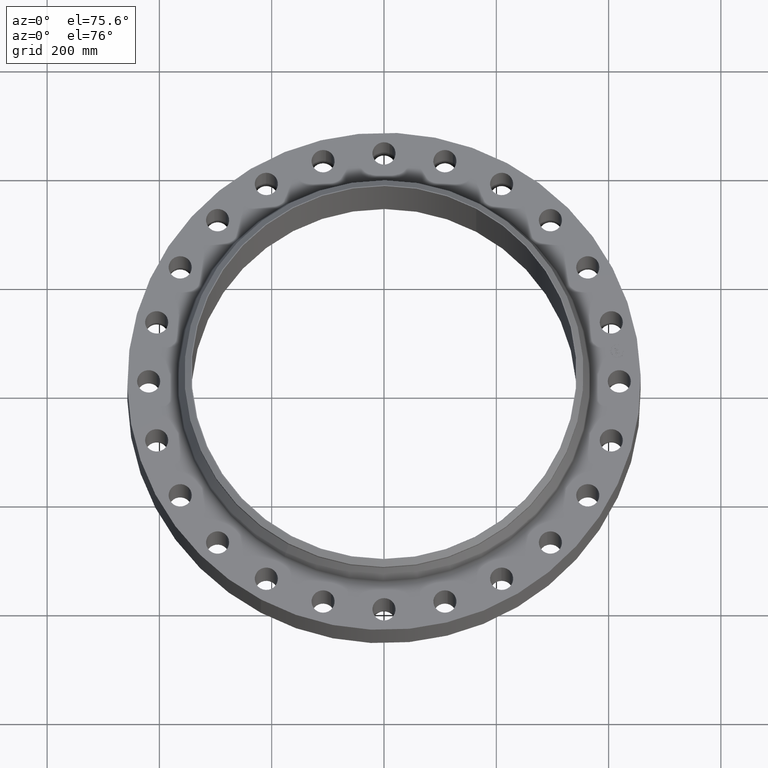
[diagram: clean part render]
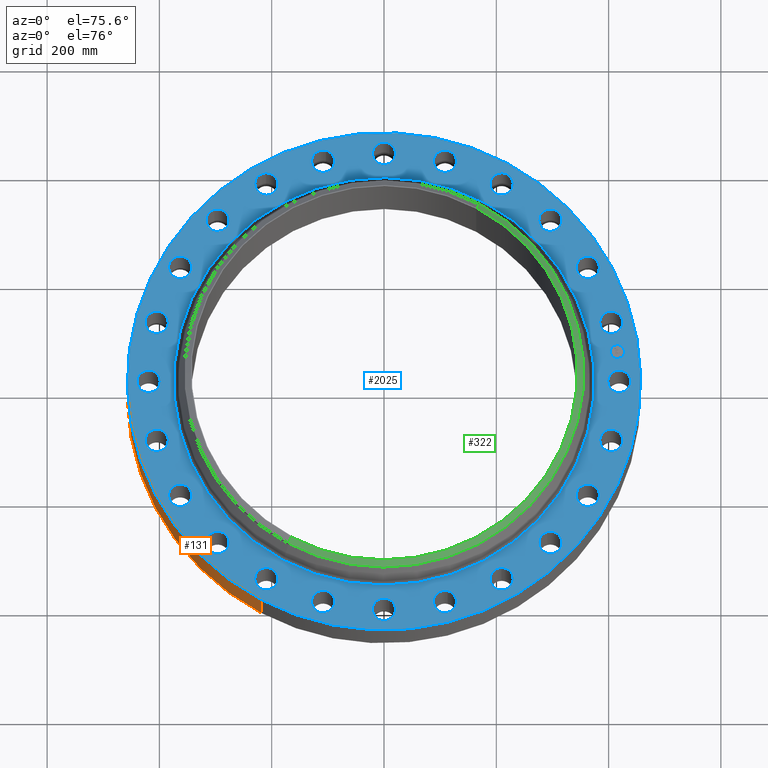
[diagram: same view with three faces highlighted in distinct colors, each labeled with its STEP entity id]
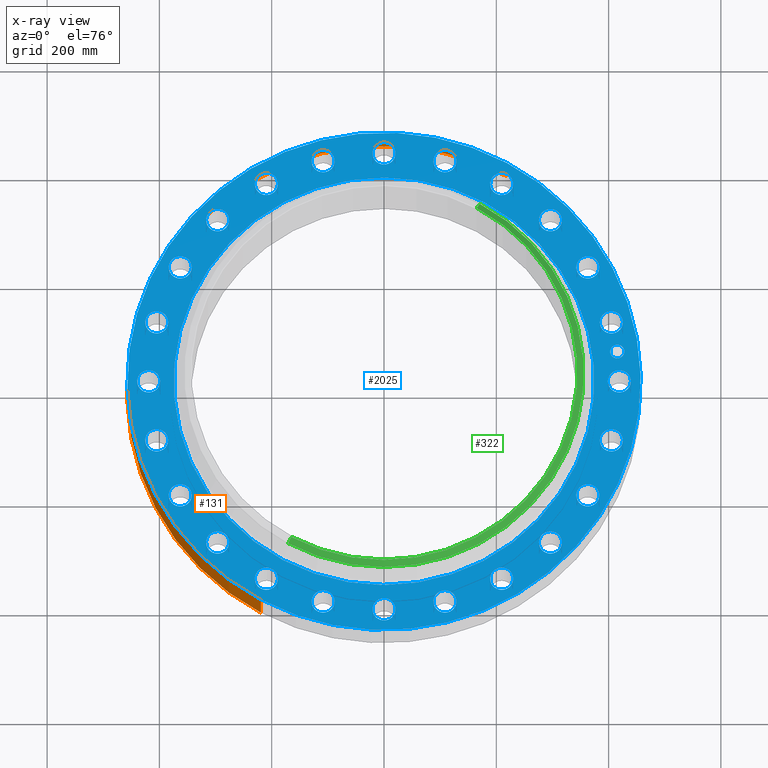
[diagram: x-ray of the same camera — body ghosted, the three highlighted faces saturated]
A machine part, auxiliary view with three faces highlighted in distinct colors.
The next image is the same camera in x-ray (body ghosted, the three faces saturated) — at least one of them is partly hidden behind the body in this view.
Their STEP definitions:

[orange] entity #131 — the highlighted cylindrical surface (partial cylindrical patch) has radius 457.2 mm, axis along (0, 0, -1).
#95=AXIS2_PLACEMENT_3D('Cylinder Axis2P3D',#92,#93,#94) ;
#99=AXIS2_PLACEMENT_3D('Circle Axis2P3D',#97,#98,$) ;
#115=AXIS2_PLACEMENT_3D('Circle Axis2P3D',#113,#114,$) ;
#92=CARTESIAN_POINT('Axis2P3D Location',(0.,0.,3.05000000001)) ;
#97=CARTESIAN_POINT('Axis2P3D Location',(0.,0.,2.23792987641E-015)) ;
#101=CARTESIAN_POINT('Vertex',(-8.62965969491,-15.7964861141,2.23792987641E-015)) ;
#103=CARTESIAN_POINT('Vertex',(8.62965969491,15.7964861141,2.23792987641E-015)) ;
#106=CARTESIAN_POINT('Line Origine',(-8.62965969491,-15.7964861141,1.87500000001)) ;
#110=CARTESIAN_POINT('Vertex',(-8.62965969491,-15.7964861141,3.75000000002)) ;
#113=CARTESIAN_POINT('Axis2P3D Location',(0.,0.,3.75000000002)) ;
#117=CARTESIAN_POINT('Vertex',(8.62965969491,15.7964861141,3.75000000002)) ;
#120=CARTESIAN_POINT('Line Origine',(8.62965969491,15.7964861141,1.87500000001)) ;
#93=DIRECTION('Axis2P3D Direction',(0.,0.,-0.0393700787402)) ;
#94=DIRECTION('Axis2P3D XDirection',(0.0188750212049,0.0345504945626,0.)) ;
#98=DIRECTION('Axis2P3D Direction',(0.,0.,-0.0393700787402)) ;
#107=DIRECTION('Vector Direction',(0.,0.,-0.0393700787402)) ;
#114=DIRECTION('Axis2P3D Direction',(0.,0.,-0.0393700787402)) ;
#121=DIRECTION('Vector Direction',(0.,0.,-0.0393700787402)) ;
#108=VECTOR('Line Direction',#107,0.0393700787402) ;
#122=VECTOR('Line Direction',#121,0.0393700787402) ;
#126=ORIENTED_EDGE('',*,*,#105,.F.) ;
#127=ORIENTED_EDGE('',*,*,#112,.T.) ;
#128=ORIENTED_EDGE('',*,*,#119,.T.) ;
#129=ORIENTED_EDGE('',*,*,#124,.F.) ;
#131=ADVANCED_FACE('PartBody',(#130),#96,.T.) ;
#100=CIRCLE('generated circle',#99,18.0000000001) ;
#116=CIRCLE('generated circle',#115,18.0000000001) ;
#96=CYLINDRICAL_SURFACE('generated cylinder',#95,18.0000000001) ;
#105=EDGE_CURVE('',#102,#104,#100,.T.) ;
#112=EDGE_CURVE('',#102,#111,#109,.F.) ;
#119=EDGE_CURVE('',#111,#118,#116,.T.) ;
#124=EDGE_CURVE('',#104,#118,#123,.F.) ;
#125=EDGE_LOOP('',(#126,#127,#128,#129)) ;
#130=FACE_OUTER_BOUND('',#125,.T.) ;
#109=LINE('Line',#106,#108) ;
#123=LINE('Line',#120,#122) ;
#102=VERTEX_POINT('',#101) ;
#104=VERTEX_POINT('',#103) ;
#111=VERTEX_POINT('',#110) ;
#118=VERTEX_POINT('',#117) ;

[blue] entity #2025 — the highlighted planar face has unit normal (0, 0, -1).
#65=AXIS2_PLACEMENT_3D('Circle Axis2P3D',#63,#64,$) ;
#82=AXIS2_PLACEMENT_3D('Circle Axis2P3D',#80,#81,$) ;
#115=AXIS2_PLACEMENT_3D('Circle Axis2P3D',#113,#114,$) ;
#139=AXIS2_PLACEMENT_3D('Circle Axis2P3D',#137,#138,$) ;
#156=AXIS2_PLACEMENT_3D('Circle Axis2P3D',#154,#155,$) ;
#191=AXIS2_PLACEMENT_3D('Circle Axis2P3D',#189,#190,$) ;
#930=AXIS2_PLACEMENT_3D('Circle Axis2P3D',#928,#929,$) ;
#942=AXIS2_PLACEMENT_3D('Circle Axis2P3D',#940,#941,$) ;
#973=AXIS2_PLACEMENT_3D('Circle Axis2P3D',#971,#972,$) ;
#985=AXIS2_PLACEMENT_3D('Circle Axis2P3D',#983,#984,$) ;
#1016=AXIS2_PLACEMENT_3D('Circle Axis2P3D',#1014,#1015,$) ;
#1028=AXIS2_PLACEMENT_3D('Circle Axis2P3D',#1026,#1027,$) ;
#1059=AXIS2_PLACEMENT_3D('Circle Axis2P3D',#1057,#1058,$) ;
#1071=AXIS2_PLACEMENT_3D('Circle Axis2P3D',#1069,#1070,$) ;
#1102=AXIS2_PLACEMENT_3D('Circle Axis2P3D',#1100,#1101,$) ;
#1114=AXIS2_PLACEMENT_3D('Circle Axis2P3D',#1112,#1113,$) ;
#1145=AXIS2_PLACEMENT_3D('Circle Axis2P3D',#1143,#1144,$) ;
#1157=AXIS2_PLACEMENT_3D('Circle Axis2P3D',#1155,#1156,$) ;
#1188=AXIS2_PLACEMENT_3D('Circle Axis2P3D',#1186,#1187,$) ;
#1200=AXIS2_PLACEMENT_3D('Circle Axis2P3D',#1198,#1199,$) ;
#1231=AXIS2_PLACEMENT_3D('Circle Axis2P3D',#1229,#1230,$) ;
#1243=AXIS2_PLACEMENT_3D('Circle Axis2P3D',#1241,#1242,$) ;
#1274=AXIS2_PLACEMENT_3D('Circle Axis2P3D',#1272,#1273,$) ;
#1286=AXIS2_PLACEMENT_3D('Circle Axis2P3D',#1284,#1285,$) ;
#1317=AXIS2_PLACEMENT_3D('Circle Axis2P3D',#1315,#1316,$) ;
#1329=AXIS2_PLACEMENT_3D('Circle Axis2P3D',#1327,#1328,$) ;
#1360=AXIS2_PLACEMENT_3D('Circle Axis2P3D',#1358,#1359,$) ;
#1372=AXIS2_PLACEMENT_3D('Circle Axis2P3D',#1370,#1371,$) ;
#1403=AXIS2_PLACEMENT_3D('Circle Axis2P3D',#1401,#1402,$) ;
#1415=AXIS2_PLACEMENT_3D('Circle Axis2P3D',#1413,#1414,$) ;
#1446=AXIS2_PLACEMENT_3D('Circle Axis2P3D',#1444,#1445,$) ;
#1458=AXIS2_PLACEMENT_3D('Circle Axis2P3D',#1456,#1457,$) ;
#1489=AXIS2_PLACEMENT_3D('Circle Axis2P3D',#1487,#1488,$) ;
#1501=AXIS2_PLACEMENT_3D('Circle Axis2P3D',#1499,#1500,$) ;
#1532=AXIS2_PLACEMENT_3D('Circle Axis2P3D',#1530,#1531,$) ;
#1544=AXIS2_PLACEMENT_3D('Circle Axis2P3D',#1542,#1543,$) ;
#1575=AXIS2_PLACEMENT_3D('Circle Axis2P3D',#1573,#1574,$) ;
#1587=AXIS2_PLACEMENT_3D('Circle Axis2P3D',#1585,#1586,$) ;
#1618=AXIS2_PLACEMENT_3D('Circle Axis2P3D',#1616,#1617,$) ;
#1630=AXIS2_PLACEMENT_3D('Circle Axis2P3D',#1628,#1629,$) ;
#1661=AXIS2_PLACEMENT_3D('Circle Axis2P3D',#1659,#1660,$) ;
#1673=AXIS2_PLACEMENT_3D('Circle Axis2P3D',#1671,#1672,$) ;
#1704=AXIS2_PLACEMENT_3D('Circle Axis2P3D',#1702,#1703,$) ;
#1716=AXIS2_PLACEMENT_3D('Circle Axis2P3D',#1714,#1715,$) ;
#1747=AXIS2_PLACEMENT_3D('Circle Axis2P3D',#1745,#1746,$) ;
#1759=AXIS2_PLACEMENT_3D('Circle Axis2P3D',#1757,#1758,$) ;
#1790=AXIS2_PLACEMENT_3D('Circle Axis2P3D',#1788,#1789,$) ;
#1802=AXIS2_PLACEMENT_3D('Circle Axis2P3D',#1800,#1801,$) ;
#1833=AXIS2_PLACEMENT_3D('Circle Axis2P3D',#1831,#1832,$) ;
#1845=AXIS2_PLACEMENT_3D('Circle Axis2P3D',#1843,#1844,$) ;
#1876=AXIS2_PLACEMENT_3D('Circle Axis2P3D',#1874,#1875,$) ;
#1888=AXIS2_PLACEMENT_3D('Circle Axis2P3D',#1886,#1887,$) ;
#1901=AXIS2_PLACEMENT_3D('Plane Axis2P3D',#1898,#1899,#1900) ;
#2009=AXIS2_PLACEMENT_3D('Circle Axis2P3D',#2007,#2008,$) ;
#2018=AXIS2_PLACEMENT_3D('Circle Axis2P3D',#2016,#2017,$) ;
#46=CARTESIAN_POINT('Vertex',(15.7891581249,0.388334686271,3.75000000002)) ;
#60=CARTESIAN_POINT('Vertex',(17.2108418752,-0.388334686271,3.75000000002)) ;
#63=CARTESIAN_POINT('Axis2P3D Location',(16.5000000001,0.,3.75000000002)) ;
#80=CARTESIAN_POINT('Axis2P3D Location',(16.5000000001,0.,3.75000000002)) ;
#110=CARTESIAN_POINT('Vertex',(-8.62965969491,-15.7964861141,3.75000000002)) ;
#113=CARTESIAN_POINT('Axis2P3D Location',(0.,0.,3.75000000002)) ;
#117=CARTESIAN_POINT('Vertex',(8.62965969491,15.7964861141,3.75000000002)) ;
#137=CARTESIAN_POINT('Axis2P3D Location',(0.,0.,3.75000000002)) ;
#154=CARTESIAN_POINT('Axis2P3D Location',(0.,0.,3.75000000002)) ;
#158=CARTESIAN_POINT('Vertex',(7.07043361052,12.9423419112,3.75000000002)) ;
#160=CARTESIAN_POINT('Vertex',(-7.07043361052,-12.9423419112,3.75000000002)) ;
#189=CARTESIAN_POINT('Axis2P3D Location',(0.,0.,3.75000000002)) ;
#918=CARTESIAN_POINT('Vertex',(-15.3516640209,3.71143232615,3.75000000002)) ;
#925=CARTESIAN_POINT('Vertex',(-16.5238882468,4.82959616226,3.75000000002)) ;
#928=CARTESIAN_POINT('Axis2P3D Location',(-15.9377761338,4.27051424421,3.75000000002)) ;
#940=CARTESIAN_POINT('Axis2P3D Location',(-15.9377761338,4.27051424421,3.75000000002)) ;
#961=CARTESIAN_POINT('Vertex',(13.8679793837,-7.55827135898,3.75000000002)) ;
#968=CARTESIAN_POINT('Vertex',(14.7108589413,-8.94172864108,3.75000000002)) ;
#971=CARTESIAN_POINT('Axis2P3D Location',(14.2894191625,-8.25000000003,3.75000000002)) ;
#983=CARTESIAN_POINT('Axis2P3D Location',(14.2894191625,-8.25000000003,3.75000000002)) ;
#1004=CARTESIAN_POINT('Vertex',(-13.8679793837,7.55827135898,3.75000000002)) ;
#1011=CARTESIAN_POINT('Vertex',(-14.7108589413,8.94172864108,3.75000000002)) ;
#1014=CARTESIAN_POINT('Axis2P3D Location',(-14.2894191625,8.25000000003,3.75000000002)) ;
#1026=CARTESIAN_POINT('Axis2P3D Location',(-14.2894191625,8.25000000003,3.75000000002)) ;
#1047=CARTESIAN_POINT('Vertex',(11.4392148694,-10.8900266893,3.75000000002)) ;
#1054=CARTESIAN_POINT('Vertex',(11.8953089099,-12.4444970899,3.75000000002)) ;
#1057=CARTESIAN_POINT('Axis2P3D Location',(11.6672618896,-11.6672618896,3.75000000002)) ;
#1069=CARTESIAN_POINT('Axis2P3D Location',(11.6672618896,-11.6672618896,3.75000000002)) ;
#1090=CARTESIAN_POINT('Vertex',(-11.4392148694,10.8900266893,3.75000000002)) ;
#1097=CARTESIAN_POINT('Vertex',(-11.8953089099,12.4444970899,3.75000000002)) ;
#1100=CARTESIAN_POINT('Axis2P3D Location',(-11.6672618896,11.6672618896,3.75000000002)) ;
#1112=CARTESIAN_POINT('Axis2P3D Location',(-11.6672618896,11.6672618896,3.75000000002)) ;
#1133=CARTESIAN_POINT('Vertex',(8.23088676595,-13.4796446974,3.75000000002)) ;
#1140=CARTESIAN_POINT('Vertex',(8.26911323412,-15.0991936276,3.75000000002)) ;
#1143=CARTESIAN_POINT('Axis2P3D Location',(8.25000000003,-14.2894191625,3.75000000002)) ;
#1155=CARTESIAN_POINT('Axis2P3D Location',(8.25000000003,-14.2894191625,3.75000000002)) ;
#1176=CARTESIAN_POINT('Vertex',(-8.23088676595,13.4796446974,3.75000000002)) ;
#1183=CARTESIAN_POINT('Vertex',(-8.26911323412,15.0991936276,3.75000000002)) ;
#1186=CARTESIAN_POINT('Axis2P3D Location',(-8.25000000003,14.2894191625,3.75000000002)) ;
#1198=CARTESIAN_POINT('Axis2P3D Location',(-8.25000000003,14.2894191625,3.75000000002)) ;
#1219=CARTESIAN_POINT('Vertex',(4.46163733158,-15.1506471956,3.75000000002)) ;
#1226=CARTESIAN_POINT('Vertex',(4.07939115684,-16.7249050721,3.75000000002)) ;
#1229=CARTESIAN_POINT('Axis2P3D Location',(4.27051424421,-15.9377761338,3.75000000002)) ;
#1241=CARTESIAN_POINT('Axis2P3D Location',(4.27051424421,-15.9377761338,3.75000000002)) ;
#1262=CARTESIAN_POINT('Vertex',(-4.46163733158,15.1506471956,3.75000000002)) ;
#1269=CARTESIAN_POINT('Vertex',(-4.07939115684,16.7249050721,3.75000000002)) ;
#1272=CARTESIAN_POINT('Axis2P3D Location',(-4.27051424421,15.9377761338,3.75000000002)) ;
#1284=CARTESIAN_POINT('Axis2P3D Location',(-4.27051424421,15.9377761338,3.75000000002)) ;
#1305=CARTESIAN_POINT('Vertex',(0.388334686271,-15.7891581249,3.75000000002)) ;
#1312=CARTESIAN_POINT('Vertex',(-0.388334686271,-17.2108418752,3.75000000002)) ;
#1315=CARTESIAN_POINT('Axis2P3D Location',(-1.22759626711E-015,-16.5000000001,3.75000000002)) ;
#1327=CARTESIAN_POINT('Axis2P3D Location',(-1.22759626711E-015,-16.5000000001,3.75000000002)) ;
#1348=CARTESIAN_POINT('Vertex',(-0.388334686271,15.7891581249,3.75000000002)) ;
#1355=CARTESIAN_POINT('Vertex',(0.388334686271,17.2108418752,3.75000000002)) ;
#1358=CARTESIAN_POINT('Axis2P3D Location',(-7.93070951492E-016,16.5000000001,3.75000000002)) ;
#1370=CARTESIAN_POINT('Axis2P3D Location',(-7.93070951492E-016,16.5000000001,3.75000000002)) ;
#1391=CARTESIAN_POINT('Vertex',(-3.71143232615,-15.3516640209,3.75000000002)) ;
#1398=CARTESIAN_POINT('Vertex',(-4.82959616226,-16.5238882468,3.75000000002)) ;
#1401=CARTESIAN_POINT('Axis2P3D Location',(-4.27051424421,-15.9377761338,3.75000000002)) ;
#1413=CARTESIAN_POINT('Axis2P3D Location',(-4.27051424421,-15.9377761338,3.75000000002)) ;
#1434=CARTESIAN_POINT('Vertex',(3.71143232615,15.3516640209,3.75000000002)) ;
#1441=CARTESIAN_POINT('Vertex',(4.82959616226,16.5238882468,3.75000000002)) ;
#1444=CARTESIAN_POINT('Axis2P3D Location',(4.27051424421,15.9377761338,3.75000000002)) ;
#1456=CARTESIAN_POINT('Axis2P3D Location',(4.27051424421,15.9377761338,3.75000000002)) ;
#1477=CARTESIAN_POINT('Vertex',(-7.55827135898,-13.8679793837,3.75000000002)) ;
#1484=CARTESIAN_POINT('Vertex',(-8.94172864108,-14.7108589413,3.75000000002)) ;
#1487=CARTESIAN_POINT('Axis2P3D Location',(-8.25000000003,-14.2894191625,3.75000000002)) ;
#1499=CARTESIAN_POINT('Axis2P3D Location',(-8.25000000003,-14.2894191625,3.75000000002)) ;
#1520=CARTESIAN_POINT('Vertex',(7.55827135898,13.8679793837,3.75000000002)) ;
#1527=CARTESIAN_POINT('Vertex',(8.94172864108,14.7108589413,3.75000000002)) ;
#1530=CARTESIAN_POINT('Axis2P3D Location',(8.25000000003,14.2894191625,3.75000000002)) ;
#1542=CARTESIAN_POINT('Axis2P3D Location',(8.25000000003,14.2894191625,3.75000000002)) ;
#1563=CARTESIAN_POINT('Vertex',(-10.8900266893,-11.4392148694,3.75000000002)) ;
#1570=CARTESIAN_POINT('Vertex',(-12.4444970899,-11.8953089099,3.75000000002)) ;
#1573=CARTESIAN_POINT('Axis2P3D Location',(-11.6672618896,-11.6672618896,3.75000000002)) ;
#1585=CARTESIAN_POINT('Axis2P3D Location',(-11.6672618896,-11.6672618896,3.75000000002)) ;
#1606=CARTESIAN_POINT('Vertex',(10.8900266893,11.4392148694,3.75000000002)) ;
#1613=CARTESIAN_POINT('Vertex',(12.4444970899,11.8953089099,3.75000000002)) ;
#1616=CARTESIAN_POINT('Axis2P3D Location',(11.6672618896,11.6672618896,3.75000000002)) ;
#1628=CARTESIAN_POINT('Axis2P3D Location',(11.6672618896,11.6672618896,3.75000000002)) ;
#1649=CARTESIAN_POINT('Vertex',(-13.4796446974,-8.23088676595,3.75000000002)) ;
#1656=CARTESIAN_POINT('Vertex',(-15.0991936276,-8.26911323412,3.75000000002)) ;
#1659=CARTESIAN_POINT('Axis2P3D Location',(-14.2894191625,-8.25000000003,3.75000000002)) ;
#1671=CARTESIAN_POINT('Axis2P3D Location',(-14.2894191625,-8.25000000003,3.75000000002)) ;
#1692=CARTESIAN_POINT('Vertex',(13.4796446974,8.23088676595,3.75000000002)) ;
#1699=CARTESIAN_POINT('Vertex',(15.0991936276,8.26911323412,3.75000000002)) ;
#1702=CARTESIAN_POINT('Axis2P3D Location',(14.2894191625,8.25000000003,3.75000000002)) ;
#1714=CARTESIAN_POINT('Axis2P3D Location',(14.2894191625,8.25000000003,3.75000000002)) ;
#1735=CARTESIAN_POINT('Vertex',(-15.1506471956,-4.46163733158,3.75000000002)) ;
#1742=CARTESIAN_POINT('Vertex',(-16.7249050721,-4.07939115684,3.75000000002)) ;
#1745=CARTESIAN_POINT('Axis2P3D Location',(-15.9377761338,-4.27051424421,3.75000000002)) ;
#1757=CARTESIAN_POINT('Axis2P3D Location',(-15.9377761338,-4.27051424421,3.75000000002)) ;
#1778=CARTESIAN_POINT('Vertex',(15.1506471956,4.46163733158,3.75000000002)) ;
#1785=CARTESIAN_POINT('Vertex',(16.7249050721,4.07939115684,3.75000000002)) ;
#1788=CARTESIAN_POINT('Axis2P3D Location',(15.9377761338,4.27051424421,3.75000000002)) ;
#1800=CARTESIAN_POINT('Axis2P3D Location',(15.9377761338,4.27051424421,3.75000000002)) ;
#1821=CARTESIAN_POINT('Vertex',(-15.7891581249,-0.388334686271,3.75000000002)) ;
#1828=CARTESIAN_POINT('Vertex',(-17.2108418752,0.388334686271,3.75000000002)) ;
#1831=CARTESIAN_POINT('Axis2P3D Location',(-16.5000000001,-2.0206672186E-015,3.75000000002)) ;
#1843=CARTESIAN_POINT('Axis2P3D Location',(-16.5000000001,-2.0206672186E-015,3.75000000002)) ;
#1864=CARTESIAN_POINT('Vertex',(15.3516640209,-3.71143232615,3.75000000002)) ;
#1871=CARTESIAN_POINT('Vertex',(16.5238882468,-4.82959616226,3.75000000002)) ;
#1874=CARTESIAN_POINT('Axis2P3D Location',(15.9377761338,-4.27051424421,3.75000000002)) ;
#1886=CARTESIAN_POINT('Axis2P3D Location',(15.9377761338,-4.27051424421,3.75000000002)) ;
#1898=CARTESIAN_POINT('Axis2P3D Location',(0.,18.0000000001,3.75000000002)) ;
#2007=CARTESIAN_POINT('Axis2P3D Location',(16.3588402127,2.15368217164,3.75000000002)) ;
#2011=CARTESIAN_POINT('Vertex',(16.2935772662,2.64940346613,3.75000000002)) ;
#2013=CARTESIAN_POINT('Vertex',(16.4241031593,1.65796087715,3.75000000002)) ;
#2016=CARTESIAN_POINT('Axis2P3D Location',(16.3588402127,2.15368217164,3.75000000002)) ;
#64=DIRECTION('Axis2P3D Direction',(0.,-0.,-0.0393700787402)) ;
#81=DIRECTION('Axis2P3D Direction',(0.,-0.,-0.0393700787402)) ;
#114=DIRECTION('Axis2P3D Direction',(0.,0.,-0.0393700787402)) ;
#138=DIRECTION('Axis2P3D Direction',(0.,0.,-0.0393700787402)) ;
#155=DIRECTION('Axis2P3D Direction',(0.,0.,-0.0393700787402)) ;
#190=DIRECTION('Axis2P3D Direction',(0.,0.,-0.0393700787402)) ;
#929=DIRECTION('Axis2P3D Direction',(0.,0.,-0.0393700787402)) ;
#941=DIRECTION('Axis2P3D Direction',(0.,0.,-0.0393700787402)) ;
#972=DIRECTION('Axis2P3D Direction',(0.,-0.,-0.0393700787402)) ;
#984=DIRECTION('Axis2P3D Direction',(0.,-0.,-0.0393700787402)) ;
#1015=DIRECTION('Axis2P3D Direction',(0.,0.,-0.0393700787402)) ;
#1027=DIRECTION('Axis2P3D Direction',(0.,0.,-0.0393700787402)) ;
#1058=DIRECTION('Axis2P3D Direction',(0.,-0.,-0.0393700787402)) ;
#1070=DIRECTION('Axis2P3D Direction',(0.,-0.,-0.0393700787402)) ;
#1101=DIRECTION('Axis2P3D Direction',(0.,0.,-0.0393700787402)) ;
#1113=DIRECTION('Axis2P3D Direction',(0.,0.,-0.0393700787402)) ;
#1144=DIRECTION('Axis2P3D Direction',(0.,-0.,-0.0393700787402)) ;
#1156=DIRECTION('Axis2P3D Direction',(0.,-0.,-0.0393700787402)) ;
#1187=DIRECTION('Axis2P3D Direction',(0.,0.,-0.0393700787402)) ;
#1199=DIRECTION('Axis2P3D Direction',(0.,0.,-0.0393700787402)) ;
#1230=DIRECTION('Axis2P3D Direction',(0.,-0.,-0.0393700787402)) ;
#1242=DIRECTION('Axis2P3D Direction',(0.,-0.,-0.0393700787402)) ;
#1273=DIRECTION('Axis2P3D Direction',(0.,0.,-0.0393700787402)) ;
#1285=DIRECTION('Axis2P3D Direction',(0.,0.,-0.0393700787402)) ;
#1316=DIRECTION('Axis2P3D Direction',(0.,-0.,-0.0393700787402)) ;
#1328=DIRECTION('Axis2P3D Direction',(0.,-0.,-0.0393700787402)) ;
#1359=DIRECTION('Axis2P3D Direction',(0.,0.,-0.0393700787402)) ;
#1371=DIRECTION('Axis2P3D Direction',(0.,0.,-0.0393700787402)) ;
#1402=DIRECTION('Axis2P3D Direction',(-0.,0.,-0.0393700787402)) ;
#1414=DIRECTION('Axis2P3D Direction',(-0.,0.,-0.0393700787402)) ;
#1445=DIRECTION('Axis2P3D Direction',(0.,0.,-0.0393700787402)) ;
#1457=DIRECTION('Axis2P3D Direction',(0.,0.,-0.0393700787402)) ;
#1488=DIRECTION('Axis2P3D Direction',(-0.,0.,-0.0393700787402)) ;
#1500=DIRECTION('Axis2P3D Direction',(-0.,0.,-0.0393700787402)) ;
#1531=DIRECTION('Axis2P3D Direction',(0.,0.,-0.0393700787402)) ;
#1543=DIRECTION('Axis2P3D Direction',(0.,0.,-0.0393700787402)) ;
#1574=DIRECTION('Axis2P3D Direction',(-0.,0.,-0.0393700787402)) ;
#1586=DIRECTION('Axis2P3D Direction',(-0.,0.,-0.0393700787402)) ;
#1617=DIRECTION('Axis2P3D Direction',(0.,0.,-0.0393700787402)) ;
#1629=DIRECTION('Axis2P3D Direction',(0.,0.,-0.0393700787402)) ;
#1660=DIRECTION('Axis2P3D Direction',(-0.,0.,-0.0393700787402)) ;
#1672=DIRECTION('Axis2P3D Direction',(-0.,0.,-0.0393700787402)) ;
#1703=DIRECTION('Axis2P3D Direction',(0.,0.,-0.0393700787402)) ;
#1715=DIRECTION('Axis2P3D Direction',(0.,0.,-0.0393700787402)) ;
#1746=DIRECTION('Axis2P3D Direction',(-0.,0.,-0.0393700787402)) ;
#1758=DIRECTION('Axis2P3D Direction',(-0.,0.,-0.0393700787402)) ;
#1789=DIRECTION('Axis2P3D Direction',(0.,0.,-0.0393700787402)) ;
#1801=DIRECTION('Axis2P3D Direction',(0.,0.,-0.0393700787402)) ;
#1832=DIRECTION('Axis2P3D Direction',(-0.,0.,-0.0393700787402)) ;
#1844=DIRECTION('Axis2P3D Direction',(-0.,0.,-0.0393700787402)) ;
#1875=DIRECTION('Axis2P3D Direction',(0.,-0.,-0.0393700787402)) ;
#1887=DIRECTION('Axis2P3D Direction',(0.,-0.,-0.0393700787402)) ;
#1899=DIRECTION('Axis2P3D Direction',(0.,0.,-0.0393700787402)) ;
#1900=DIRECTION('Axis2P3D XDirection',(0.0393700787402,0.,0.)) ;
#2008=DIRECTION('Axis2P3D Direction',(0.,0.,-0.0393700787402)) ;
#2017=DIRECTION('Axis2P3D Direction',(0.,0.,-0.0393700787402)) ;
#1904=ORIENTED_EDGE('',*,*,#141,.F.) ;
#1905=ORIENTED_EDGE('',*,*,#119,.F.) ;
#1908=ORIENTED_EDGE('',*,*,#67,.T.) ;
#1909=ORIENTED_EDGE('',*,*,#84,.T.) ;
#1912=ORIENTED_EDGE('',*,*,#193,.T.) ;
#1913=ORIENTED_EDGE('',*,*,#162,.T.) ;
#1916=ORIENTED_EDGE('',*,*,#1890,.T.) ;
#1917=ORIENTED_EDGE('',*,*,#1878,.T.) ;
#1920=ORIENTED_EDGE('',*,*,#987,.T.) ;
#1921=ORIENTED_EDGE('',*,*,#975,.T.) ;
#1924=ORIENTED_EDGE('',*,*,#1073,.T.) ;
#1925=ORIENTED_EDGE('',*,*,#1061,.T.) ;
#1928=ORIENTED_EDGE('',*,*,#1159,.T.) ;
#1929=ORIENTED_EDGE('',*,*,#1147,.T.) ;
#1932=ORIENTED_EDGE('',*,*,#1245,.T.) ;
#1933=ORIENTED_EDGE('',*,*,#1233,.T.) ;
#1936=ORIENTED_EDGE('',*,*,#1331,.T.) ;
#1937=ORIENTED_EDGE('',*,*,#1319,.T.) ;
#1940=ORIENTED_EDGE('',*,*,#1417,.T.) ;
#1941=ORIENTED_EDGE('',*,*,#1405,.T.) ;
#1944=ORIENTED_EDGE('',*,*,#1503,.T.) ;
#1945=ORIENTED_EDGE('',*,*,#1491,.T.) ;
#1948=ORIENTED_EDGE('',*,*,#1589,.T.) ;
#1949=ORIENTED_EDGE('',*,*,#1577,.T.) ;
#1952=ORIENTED_EDGE('',*,*,#1675,.T.) ;
#1953=ORIENTED_EDGE('',*,*,#1663,.T.) ;
#1956=ORIENTED_EDGE('',*,*,#1761,.T.) ;
#1957=ORIENTED_EDGE('',*,*,#1749,.T.) ;
#1960=ORIENTED_EDGE('',*,*,#1847,.T.) ;
#1961=ORIENTED_EDGE('',*,*,#1835,.T.) ;
#1964=ORIENTED_EDGE('',*,*,#944,.T.) ;
#1965=ORIENTED_EDGE('',*,*,#932,.T.) ;
#1968=ORIENTED_EDGE('',*,*,#1030,.T.) ;
#1969=ORIENTED_EDGE('',*,*,#1018,.T.) ;
#1972=ORIENTED_EDGE('',*,*,#1116,.T.) ;
#1973=ORIENTED_EDGE('',*,*,#1104,.T.) ;
#1976=ORIENTED_EDGE('',*,*,#1202,.T.) ;
#1977=ORIENTED_EDGE('',*,*,#1190,.T.) ;
#1980=ORIENTED_EDGE('',*,*,#1288,.T.) ;
#1981=ORIENTED_EDGE('',*,*,#1276,.T.) ;
#1984=ORIENTED_EDGE('',*,*,#1374,.T.) ;
#1985=ORIENTED_EDGE('',*,*,#1362,.T.) ;
#1988=ORIENTED_EDGE('',*,*,#1460,.T.) ;
#1989=ORIENTED_EDGE('',*,*,#1448,.T.) ;
#1992=ORIENTED_EDGE('',*,*,#1546,.T.) ;
#1993=ORIENTED_EDGE('',*,*,#1534,.T.) ;
#1996=ORIENTED_EDGE('',*,*,#1632,.T.) ;
#1997=ORIENTED_EDGE('',*,*,#1620,.T.) ;
#2000=ORIENTED_EDGE('',*,*,#1718,.T.) ;
#2001=ORIENTED_EDGE('',*,*,#1706,.T.) ;
#2004=ORIENTED_EDGE('',*,*,#1804,.T.) ;
#2005=ORIENTED_EDGE('',*,*,#1792,.T.) ;
#2022=ORIENTED_EDGE('',*,*,#2015,.T.) ;
#2023=ORIENTED_EDGE('',*,*,#2020,.T.) ;
#1910=FACE_BOUND('',#1907,.T.) ;
#1914=FACE_BOUND('',#1911,.T.) ;
#1918=FACE_BOUND('',#1915,.T.) ;
#1922=FACE_BOUND('',#1919,.T.) ;
#1926=FACE_BOUND('',#1923,.T.) ;
#1930=FACE_BOUND('',#1927,.T.) ;
#1934=FACE_BOUND('',#1931,.T.) ;
#1938=FACE_BOUND('',#1935,.T.) ;
#1942=FACE_BOUND('',#1939,.T.) ;
#1946=FACE_BOUND('',#1943,.T.) ;
#1950=FACE_BOUND('',#1947,.T.) ;
#1954=FACE_BOUND('',#1951,.T.) ;
#1958=FACE_BOUND('',#1955,.T.) ;
#1962=FACE_BOUND('',#1959,.T.) ;
#1966=FACE_BOUND('',#1963,.T.) ;
#1970=FACE_BOUND('',#1967,.T.) ;
#1974=FACE_BOUND('',#1971,.T.) ;
#1978=FACE_BOUND('',#1975,.T.) ;
#1982=FACE_BOUND('',#1979,.T.) ;
#1986=FACE_BOUND('',#1983,.T.) ;
#1990=FACE_BOUND('',#1987,.T.) ;
#1994=FACE_BOUND('',#1991,.T.) ;
#1998=FACE_BOUND('',#1995,.T.) ;
#2002=FACE_BOUND('',#1999,.T.) ;
#2006=FACE_BOUND('',#2003,.T.) ;
#2024=FACE_BOUND('',#2021,.T.) ;
#2025=ADVANCED_FACE('PartBody',(#1906,#1910,#1914,#1918,#1922,#1926,#1930,#1934,#1938,#1942,#1946,#1950,#1954,#1958,#1962,#1966,#1970,#1974,#1978,#1982,#1986,#1990,#1994,#1998,#2002,#2006,#2024),#1902,.F.) ;
#66=CIRCLE('generated circle',#65,0.810000000003) ;
#83=CIRCLE('generated circle',#82,0.810000000003) ;
#116=CIRCLE('generated circle',#115,18.0000000001) ;
#140=CIRCLE('generated circle',#139,18.0000000001) ;
#157=CIRCLE('generated circle',#156,14.7477200132) ;
#192=CIRCLE('generated circle',#191,14.7477200132) ;
#931=CIRCLE('generated circle',#930,0.810000000003) ;
#943=CIRCLE('generated circle',#942,0.810000000003) ;
#974=CIRCLE('generated circle',#973,0.810000000003) ;
#986=CIRCLE('generated circle',#985,0.810000000003) ;
#1017=CIRCLE('generated circle',#1016,0.810000000003) ;
#1029=CIRCLE('generated circle',#1028,0.810000000003) ;
#1060=CIRCLE('generated circle',#1059,0.810000000003) ;
#1072=CIRCLE('generated circle',#1071,0.810000000003) ;
#1103=CIRCLE('generated circle',#1102,0.810000000003) ;
#1115=CIRCLE('generated circle',#1114,0.810000000003) ;
#1146=CIRCLE('generated circle',#1145,0.810000000003) ;
#1158=CIRCLE('generated circle',#1157,0.810000000003) ;
#1189=CIRCLE('generated circle',#1188,0.810000000003) ;
#1201=CIRCLE('generated circle',#1200,0.810000000003) ;
#1232=CIRCLE('generated circle',#1231,0.810000000003) ;
#1244=CIRCLE('generated circle',#1243,0.810000000003) ;
#1275=CIRCLE('generated circle',#1274,0.810000000003) ;
#1287=CIRCLE('generated circle',#1286,0.810000000003) ;
#1318=CIRCLE('generated circle',#1317,0.810000000003) ;
#1330=CIRCLE('generated circle',#1329,0.810000000003) ;
#1361=CIRCLE('generated circle',#1360,0.810000000003) ;
#1373=CIRCLE('generated circle',#1372,0.810000000003) ;
#1404=CIRCLE('generated circle',#1403,0.810000000003) ;
#1416=CIRCLE('generated circle',#1415,0.810000000003) ;
#1447=CIRCLE('generated circle',#1446,0.810000000003) ;
#1459=CIRCLE('generated circle',#1458,0.810000000003) ;
#1490=CIRCLE('generated circle',#1489,0.810000000003) ;
#1502=CIRCLE('generated circle',#1501,0.810000000003) ;
#1533=CIRCLE('generated circle',#1532,0.810000000003) ;
#1545=CIRCLE('generated circle',#1544,0.810000000003) ;
#1576=CIRCLE('generated circle',#1575,0.810000000003) ;
#1588=CIRCLE('generated circle',#1587,0.810000000003) ;
#1619=CIRCLE('generated circle',#1618,0.810000000003) ;
#1631=CIRCLE('generated circle',#1630,0.810000000003) ;
#1662=CIRCLE('generated circle',#1661,0.810000000003) ;
#1674=CIRCLE('generated circle',#1673,0.810000000003) ;
#1705=CIRCLE('generated circle',#1704,0.810000000003) ;
#1717=CIRCLE('generated circle',#1716,0.810000000003) ;
#1748=CIRCLE('generated circle',#1747,0.810000000003) ;
#1760=CIRCLE('generated circle',#1759,0.810000000003) ;
#1791=CIRCLE('generated circle',#1790,0.810000000003) ;
#1803=CIRCLE('generated circle',#1802,0.810000000003) ;
#1834=CIRCLE('generated circle',#1833,0.810000000003) ;
#1846=CIRCLE('generated circle',#1845,0.810000000003) ;
#1877=CIRCLE('generated circle',#1876,0.810000000003) ;
#1889=CIRCLE('generated circle',#1888,0.810000000003) ;
#2010=CIRCLE('generated circle',#2009,0.499998853999) ;
#2019=CIRCLE('generated circle',#2018,0.499998853999) ;
#67=EDGE_CURVE('',#47,#61,#66,.T.) ;
#84=EDGE_CURVE('',#61,#47,#83,.T.) ;
#119=EDGE_CURVE('',#111,#118,#116,.T.) ;
#141=EDGE_CURVE('',#118,#111,#140,.T.) ;
#162=EDGE_CURVE('',#159,#161,#157,.T.) ;
#193=EDGE_CURVE('',#161,#159,#192,.T.) ;
#932=EDGE_CURVE('',#919,#926,#931,.T.) ;
#944=EDGE_CURVE('',#926,#919,#943,.T.) ;
#975=EDGE_CURVE('',#962,#969,#974,.T.) ;
#987=EDGE_CURVE('',#969,#962,#986,.T.) ;
#1018=EDGE_CURVE('',#1005,#1012,#1017,.T.) ;
#1030=EDGE_CURVE('',#1012,#1005,#1029,.T.) ;
#1061=EDGE_CURVE('',#1048,#1055,#1060,.T.) ;
#1073=EDGE_CURVE('',#1055,#1048,#1072,.T.) ;
#1104=EDGE_CURVE('',#1091,#1098,#1103,.T.) ;
#1116=EDGE_CURVE('',#1098,#1091,#1115,.T.) ;
#1147=EDGE_CURVE('',#1134,#1141,#1146,.T.) ;
#1159=EDGE_CURVE('',#1141,#1134,#1158,.T.) ;
#1190=EDGE_CURVE('',#1177,#1184,#1189,.T.) ;
#1202=EDGE_CURVE('',#1184,#1177,#1201,.T.) ;
#1233=EDGE_CURVE('',#1220,#1227,#1232,.T.) ;
#1245=EDGE_CURVE('',#1227,#1220,#1244,.T.) ;
#1276=EDGE_CURVE('',#1263,#1270,#1275,.T.) ;
#1288=EDGE_CURVE('',#1270,#1263,#1287,.T.) ;
#1319=EDGE_CURVE('',#1306,#1313,#1318,.T.) ;
#1331=EDGE_CURVE('',#1313,#1306,#1330,.T.) ;
#1362=EDGE_CURVE('',#1349,#1356,#1361,.T.) ;
#1374=EDGE_CURVE('',#1356,#1349,#1373,.T.) ;
#1405=EDGE_CURVE('',#1392,#1399,#1404,.T.) ;
#1417=EDGE_CURVE('',#1399,#1392,#1416,.T.) ;
#1448=EDGE_CURVE('',#1435,#1442,#1447,.T.) ;
#1460=EDGE_CURVE('',#1442,#1435,#1459,.T.) ;
#1491=EDGE_CURVE('',#1478,#1485,#1490,.T.) ;
#1503=EDGE_CURVE('',#1485,#1478,#1502,.T.) ;
#1534=EDGE_CURVE('',#1521,#1528,#1533,.T.) ;
#1546=EDGE_CURVE('',#1528,#1521,#1545,.T.) ;
#1577=EDGE_CURVE('',#1564,#1571,#1576,.T.) ;
#1589=EDGE_CURVE('',#1571,#1564,#1588,.T.) ;
#1620=EDGE_CURVE('',#1607,#1614,#1619,.T.) ;
#1632=EDGE_CURVE('',#1614,#1607,#1631,.T.) ;
#1663=EDGE_CURVE('',#1650,#1657,#1662,.T.) ;
#1675=EDGE_CURVE('',#1657,#1650,#1674,.T.) ;
#1706=EDGE_CURVE('',#1693,#1700,#1705,.T.) ;
#1718=EDGE_CURVE('',#1700,#1693,#1717,.T.) ;
#1749=EDGE_CURVE('',#1736,#1743,#1748,.T.) ;
#1761=EDGE_CURVE('',#1743,#1736,#1760,.T.) ;
#1792=EDGE_CURVE('',#1779,#1786,#1791,.T.) ;
#1804=EDGE_CURVE('',#1786,#1779,#1803,.T.) ;
#1835=EDGE_CURVE('',#1822,#1829,#1834,.T.) ;
#1847=EDGE_CURVE('',#1829,#1822,#1846,.T.) ;
#1878=EDGE_CURVE('',#1865,#1872,#1877,.T.) ;
#1890=EDGE_CURVE('',#1872,#1865,#1889,.T.) ;
#2015=EDGE_CURVE('',#2012,#2014,#2010,.T.) ;
#2020=EDGE_CURVE('',#2014,#2012,#2019,.T.) ;
#1903=EDGE_LOOP('',(#1904,#1905)) ;
#1907=EDGE_LOOP('',(#1908,#1909)) ;
#1911=EDGE_LOOP('',(#1912,#1913)) ;
#1915=EDGE_LOOP('',(#1916,#1917)) ;
#1919=EDGE_LOOP('',(#1920,#1921)) ;
#1923=EDGE_LOOP('',(#1924,#1925)) ;
#1927=EDGE_LOOP('',(#1928,#1929)) ;
#1931=EDGE_LOOP('',(#1932,#1933)) ;
#1935=EDGE_LOOP('',(#1936,#1937)) ;
#1939=EDGE_LOOP('',(#1940,#1941)) ;
#1943=EDGE_LOOP('',(#1944,#1945)) ;
#1947=EDGE_LOOP('',(#1948,#1949)) ;
#1951=EDGE_LOOP('',(#1952,#1953)) ;
#1955=EDGE_LOOP('',(#1956,#1957)) ;
#1959=EDGE_LOOP('',(#1960,#1961)) ;
#1963=EDGE_LOOP('',(#1964,#1965)) ;
#1967=EDGE_LOOP('',(#1968,#1969)) ;
#1971=EDGE_LOOP('',(#1972,#1973)) ;
#1975=EDGE_LOOP('',(#1976,#1977)) ;
#1979=EDGE_LOOP('',(#1980,#1981)) ;
#1983=EDGE_LOOP('',(#1984,#1985)) ;
#1987=EDGE_LOOP('',(#1988,#1989)) ;
#1991=EDGE_LOOP('',(#1992,#1993)) ;
#1995=EDGE_LOOP('',(#1996,#1997)) ;
#1999=EDGE_LOOP('',(#2000,#2001)) ;
#2003=EDGE_LOOP('',(#2004,#2005)) ;
#2021=EDGE_LOOP('',(#2022,#2023)) ;
#1906=FACE_OUTER_BOUND('',#1903,.T.) ;
#1902=PLANE('',#1901) ;
#47=VERTEX_POINT('',#46) ;
#61=VERTEX_POINT('',#60) ;
#111=VERTEX_POINT('',#110) ;
#118=VERTEX_POINT('',#117) ;
#159=VERTEX_POINT('',#158) ;
#161=VERTEX_POINT('',#160) ;
#919=VERTEX_POINT('',#918) ;
#926=VERTEX_POINT('',#925) ;
#962=VERTEX_POINT('',#961) ;
#969=VERTEX_POINT('',#968) ;
#1005=VERTEX_POINT('',#1004) ;
#1012=VERTEX_POINT('',#1011) ;
#1048=VERTEX_POINT('',#1047) ;
#1055=VERTEX_POINT('',#1054) ;
#1091=VERTEX_POINT('',#1090) ;
#1098=VERTEX_POINT('',#1097) ;
#1134=VERTEX_POINT('',#1133) ;
#1141=VERTEX_POINT('',#1140) ;
#1177=VERTEX_POINT('',#1176) ;
#1184=VERTEX_POINT('',#1183) ;
#1220=VERTEX_POINT('',#1219) ;
#1227=VERTEX_POINT('',#1226) ;
#1263=VERTEX_POINT('',#1262) ;
#1270=VERTEX_POINT('',#1269) ;
#1306=VERTEX_POINT('',#1305) ;
#1313=VERTEX_POINT('',#1312) ;
#1349=VERTEX_POINT('',#1348) ;
#1356=VERTEX_POINT('',#1355) ;
#1392=VERTEX_POINT('',#1391) ;
#1399=VERTEX_POINT('',#1398) ;
#1435=VERTEX_POINT('',#1434) ;
#1442=VERTEX_POINT('',#1441) ;
#1478=VERTEX_POINT('',#1477) ;
#1485=VERTEX_POINT('',#1484) ;
#1521=VERTEX_POINT('',#1520) ;
#1528=VERTEX_POINT('',#1527) ;
#1564=VERTEX_POINT('',#1563) ;
#1571=VERTEX_POINT('',#1570) ;
#1607=VERTEX_POINT('',#1606) ;
#1614=VERTEX_POINT('',#1613) ;
#1650=VERTEX_POINT('',#1649) ;
#1657=VERTEX_POINT('',#1656) ;
#1693=VERTEX_POINT('',#1692) ;
#1700=VERTEX_POINT('',#1699) ;
#1736=VERTEX_POINT('',#1735) ;
#1743=VERTEX_POINT('',#1742) ;
#1779=VERTEX_POINT('',#1778) ;
#1786=VERTEX_POINT('',#1785) ;
#1822=VERTEX_POINT('',#1821) ;
#1829=VERTEX_POINT('',#1828) ;
#1865=VERTEX_POINT('',#1864) ;
#1872=VERTEX_POINT('',#1871) ;
#2012=VERTEX_POINT('',#2011) ;
#2014=VERTEX_POINT('',#2013) ;

[green] entity #322 — the highlighted conical surface has half-angle 52.5 deg.
#270=AXIS2_PLACEMENT_3D('Circle Axis2P3D',#268,#269,$) ;
#295=AXIS2_PLACEMENT_3D('Cone Axis2P3D',#292,#293,#294) ;
#306=AXIS2_PLACEMENT_3D('Circle Axis2P3D',#304,#305,$) ;
#258=CARTESIAN_POINT('Vertex',(-6.71195754049,-12.2861558665,5.91429444278)) ;
#265=CARTESIAN_POINT('Vertex',(6.71195754049,12.2861558665,5.91429444278)) ;
#268=CARTESIAN_POINT('Axis2P3D Location',(0.,0.,5.91429444278)) ;
#292=CARTESIAN_POINT('Axis2P3D Location',(0.,0.,6.25000000003)) ;
#297=CARTESIAN_POINT('Line Origine',(6.60708320392,12.0941846811,6.0821472214)) ;
#301=CARTESIAN_POINT('Vertex',(6.50220886735,11.9022134957,6.25000000003)) ;
#304=CARTESIAN_POINT('Axis2P3D Location',(0.,0.,6.25000000003)) ;
#308=CARTESIAN_POINT('Vertex',(-6.50220886735,-11.9022134957,6.25000000003)) ;
#311=CARTESIAN_POINT('Line Origine',(-6.60708320392,-12.0941846811,6.0821472214)) ;
#269=DIRECTION('Axis2P3D Direction',(0.,0.,-0.0393700787402)) ;
#293=DIRECTION('Axis2P3D Direction',(-0.,-0.,-0.0393700787402)) ;
#294=DIRECTION('Axis2P3D XDirection',(-0.0188750212049,-0.0345504945626,0.)) ;
#298=DIRECTION('Vector Direction',(0.014974561121,0.02741075027,-0.023966985394)) ;
#305=DIRECTION('Axis2P3D Direction',(0.,-0.,-0.0393700787402)) ;
#312=DIRECTION('Vector Direction',(-0.014974561121,-0.02741075027,-0.023966985394)) ;
#299=VECTOR('Line Direction',#298,0.0393700787402) ;
#313=VECTOR('Line Direction',#312,0.0393700787402) ;
#317=ORIENTED_EDGE('',*,*,#303,.F.) ;
#318=ORIENTED_EDGE('',*,*,#310,.T.) ;
#319=ORIENTED_EDGE('',*,*,#315,.T.) ;
#320=ORIENTED_EDGE('',*,*,#272,.F.) ;
#322=ADVANCED_FACE('PartBody',(#321),#296,.T.) ;
#271=CIRCLE('generated circle',#270,14.0000000001) ;
#307=CIRCLE('generated circle',#306,13.5625000001) ;
#296=CONICAL_SURFACE('Cone',#295,13.5625000001,0.916297857297) ;
#272=EDGE_CURVE('',#266,#259,#271,.T.) ;
#303=EDGE_CURVE('',#302,#266,#300,.T.) ;
#310=EDGE_CURVE('',#302,#309,#307,.T.) ;
#315=EDGE_CURVE('',#309,#259,#314,.T.) ;
#316=EDGE_LOOP('',(#317,#318,#319,#320)) ;
#321=FACE_OUTER_BOUND('',#316,.T.) ;
#300=LINE('Line',#297,#299) ;
#314=LINE('Line',#311,#313) ;
#259=VERTEX_POINT('',#258) ;
#266=VERTEX_POINT('',#265) ;
#302=VERTEX_POINT('',#301) ;
#309=VERTEX_POINT('',#308) ;